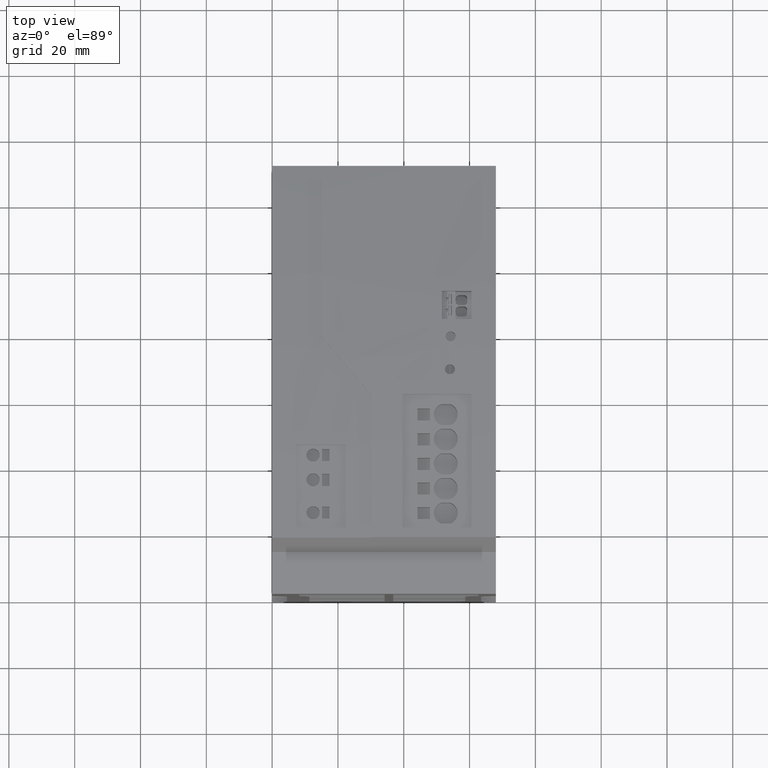
[diagram: clean part render]
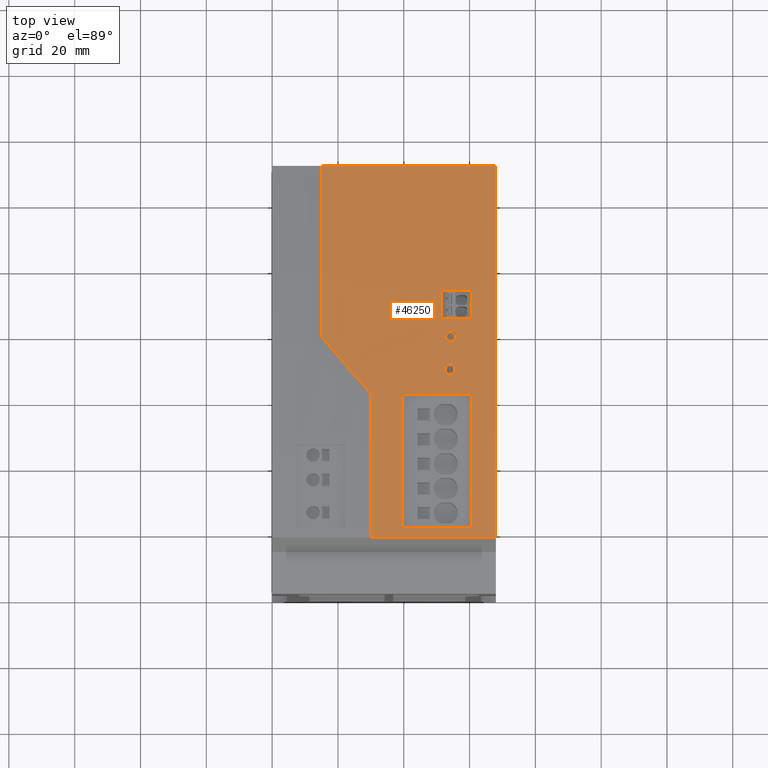
[diagram: same view with one face highlighted and labeled with its STEP entity id]
A machine part, top view. The second image highlights one B-rep face of the part: STEP entity #46250.
In plain terms, the highlighted cylindrical surface (partial cylindrical patch) has radius 660 mm, axis along (1, 0, 0).
Its self-contained STEP definition (entity closure, byte-faithful):
#36800=CARTESIAN_POINT('',(160.,16.9999999999954,-63.5));
#36810=VERTEX_POINT('',#36800);
#36840=CARTESIAN_POINT('',(-500.,17.,-63.5));
#36850=DIRECTION('',(0.,0.,-1.));
#36860=DIRECTION('',(-1.,0.,0.));
#36870=AXIS2_PLACEMENT_3D('',#36840,#36850,#36860);
#36880=CIRCLE('',#36870,660.);
#36890=CARTESIAN_POINT('',(150.254565535683,130.,-63.5));
#36900=VERTEX_POINT('',#36890);
#36910=EDGE_CURVE('',#36900,#36810,#36880,.T.);
#43640=CARTESIAN_POINT('',(-500.,17.,-63.5));
#43650=DIRECTION('',(0.,0.,-1.));
#43660=DIRECTION('',(-1.,0.,0.));
#43670=AXIS2_PLACEMENT_3D('',#43640,#43650,#43660);
#43680=CYLINDRICAL_SURFACE('',#43670,660.);
#43690=CARTESIAN_POINT('',(-500.,17.,-25.5));
#43700=DIRECTION('',(0.,0.,-1.));
#43710=DIRECTION('',(-1.,0.,0.));
#43720=AXIS2_PLACEMENT_3D('',#43690,#43700,#43710);
#43730=CIRCLE('',#43720,660.);
#43740=CARTESIAN_POINT('',(158.558506647845,60.5969416560468,-25.5));
#43750=VERTEX_POINT('',#43740);
#43760=CARTESIAN_POINT('',(160.,16.9999999999954,-25.5));
#43770=VERTEX_POINT('',#43760);
#43780=EDGE_CURVE('',#43750,#43770,#43730,.T.);
#43790=ORIENTED_EDGE('',*,*,#43780,.T.);
#43800=CARTESIAN_POINT('',(-500.,17.,-45.6454894932256));
#43810=DIRECTION('',(0.0200042102666528,-0.652297244206266,
0.757699238994285));
#43820=DIRECTION('',(-0.0232256881480475,0.757343187849847,
0.652603909908209));
#43830=AXIS2_PLACEMENT_3D('',#43800,#43810,#43820);
#43840=ELLIPSE('',#43830,871.058021486251,660.);
#43850=CARTESIAN_POINT('',(157.177022783229,77.9783627672197,-10.5));
#43860=VERTEX_POINT('',#43850);
#43870=EDGE_CURVE('',#43750,#43860,#43840,.T.);
#43880=ORIENTED_EDGE('',*,*,#43870,.F.);
#43890=CARTESIAN_POINT('',(-500.,17.,-10.5));
#43900=DIRECTION('',(0.,0.,-1.));
#43910=DIRECTION('',(-1.,0.,0.));
#43920=AXIS2_PLACEMENT_3D('',#43890,#43900,#43910);
#43930=CIRCLE('',#43920,660.);
#43940=CARTESIAN_POINT('',(150.254565535683,130.,-10.5));
#43950=VERTEX_POINT('',#43940);
#43960=EDGE_CURVE('',#43950,#43860,#43930,.T.);
#43970=ORIENTED_EDGE('',*,*,#43960,.T.);
#43980=CARTESIAN_POINT('',(150.254565535683,130.,-63.5));
#43990=DIRECTION('',(0.,0.,-1.));
#44000=VECTOR('',#43990,1.);
#44010=LINE('',#43980,#44000);
#44020=EDGE_CURVE('',#43950,#36900,#44010,.T.);
#44030=ORIENTED_EDGE('',*,*,#44020,.F.);
#44040=ORIENTED_EDGE('',*,*,#36910,.F.);
#44050=CARTESIAN_POINT('',(160.,16.9999999999951,-63.5));
#44060=DIRECTION('',(0.,0.,-1.));
#44070=VECTOR('',#44060,1.);
#44080=LINE('',#44050,#44070);
#44090=EDGE_CURVE('',#43770,#36810,#44080,.T.);
#44100=ORIENTED_EDGE('',*,*,#44090,.T.);
#44110=EDGE_LOOP('',(#44100,#44040,#44030,#43970,#43880,#43790));
#44120=FACE_OUTER_BOUND('',#44110,.T.);
#44130=CARTESIAN_POINT('',(156.657332089623,83.3411502232141,-63.5));
#44140=DIRECTION('',(0.,0.,-1.));
#44150=VECTOR('',#44140,1.);
#44160=LINE('',#44130,#44150);
#44170=CARTESIAN_POINT('',(156.657332089623,83.3411502232141,
-47.0535536205592));
#44180=VERTEX_POINT('',#44170);
#44190=CARTESIAN_POINT('',(156.657332089623,83.3411502232141,
-56.0464488452147));
#44200=VERTEX_POINT('',#44190);
#44210=EDGE_CURVE('',#44180,#44200,#44160,.T.);
#44220=ORIENTED_EDGE('',*,*,#44210,.F.);
#44230=CARTESIAN_POINT('',(-500.,17.,-56.0464488452147));
#44240=DIRECTION('',(0.,0.,-1.));
#44250=DIRECTION('',(-1.,0.,0.));
#44260=AXIS2_PLACEMENT_3D('',#44230,#44240,#44250);
#44270=CIRCLE('',#44260,660.);
#44280=CARTESIAN_POINT('',(155.731488730573,91.9414083613711,
-56.0464488452147));
#44290=VERTEX_POINT('',#44280);
#44300=EDGE_CURVE('',#44290,#44200,#44270,.T.);
#44310=ORIENTED_EDGE('',*,*,#44300,.T.);
#44320=CARTESIAN_POINT('',(155.731488730573,91.9414083613711,-63.5));
#44330=DIRECTION('',(0.,0.,-1.));
#44340=VECTOR('',#44330,1.);
#44350=LINE('',#44320,#44340);
#44360=CARTESIAN_POINT('',(155.731488730573,91.941408361371,
-47.0535509420847));
#44370=VERTEX_POINT('',#44360);
#44380=EDGE_CURVE('',#44370,#44290,#44350,.T.);
#44390=ORIENTED_EDGE('',*,*,#44380,.T.);
#44400=CARTESIAN_POINT('',(160.01810370412,54.8884984593609,
-47.053562497479));
#44410=CARTESIAN_POINT('',(159.591697785996,58.5748267309584,
-47.0535613477053));
#44420=CARTESIAN_POINT('',(159.165291867873,62.2611550025558,
-47.0535601979317));
#44430=CARTESIAN_POINT('',(158.075654924174,71.6811918749563,
-47.0535572598019));
#44440=CARTESIAN_POINT('',(157.412423898599,77.4149004757593,
-47.0535554714459));
#44450=CARTESIAN_POINT('',(156.410184654465,86.0793741697759,
-47.053552768978));
#44460=CARTESIAN_POINT('',(156.071146645719,89.0103968025886,
-47.0535518552891));
#44470=CARTESIAN_POINT('',(155.068870690566,97.6751878675992,
-47.0535491556976));
#44480=CARTESIAN_POINT('',(154.40563966499,103.408896468402,
-47.0535473693105));
#44490=CARTESIAN_POINT('',(153.316002721292,112.828933340803,
-47.0535444344156));
#44500=CARTESIAN_POINT('',(152.889596803168,116.5152616124,
-47.0535432859078));
#44510=CARTESIAN_POINT('',(152.463190885044,120.201589883998,
-47.0535421374));
#44520=B_SPLINE_CURVE_WITH_KNOTS('',3,(#44400,#44410,#44420,#44430,
#44440,#44450,#44460,#44470,#44480,#44490,#44500,#44510),.UNSPECIFIED.,
.F.,.F.,(4,2,2,2,2,4),(-3.21419034715991,-1.95638627404146,0.,1.,
2.95617444095114,4.21384232188334),.UNSPECIFIED.);
#44530=DIRECTION('',(-0.993376359232588,-0.114906087383605,0.));
#44540=VECTOR('',#44530,1.);
#44550=SURFACE_OF_LINEAR_EXTRUSION('',#44520,#44540);
#44560=CARTESIAN_POINT('',(155.731488730573,91.9414083613711,
-47.0535509420847));
#44570=CARTESIAN_POINT('',(155.813337578522,91.2252373140195,
-47.0535511651788));
#44580=CARTESIAN_POINT('',(155.894013370904,90.5089302547714,
-47.0535513883029));
#44590=CARTESIAN_POINT('',(155.973515448704,89.7924929499563,
-47.0535516114555));
#44600=CARTESIAN_POINT('',(156.053017526503,89.0760556451422,
-47.053551834608));
#44610=CARTESIAN_POINT('',(156.131345889711,88.3594880948506,
-47.0535520577889));
#44620=CARTESIAN_POINT('',(156.208499917112,87.6427960696197,
-47.0535522809963));
#44630=CARTESIAN_POINT('',(156.285653944513,86.9261040443856,
-47.0535525042037));
#44640=CARTESIAN_POINT('',(156.361634050245,86.2092836972283,
-47.0535527274388));
#44650=CARTESIAN_POINT('',(156.436439613102,85.4923407986188,
-47.0535529506999));
#44660=CARTESIAN_POINT('',(156.511245175958,84.7753979000151,
-47.053553173961));
#44670=CARTESIAN_POINT('',(156.58487619593,84.0583324500261,
-47.053553397248));
#44680=CARTESIAN_POINT('',(156.657332089623,83.3411502232141,
-47.0535536205592));
#44690=B_SPLINE_CURVE_WITH_KNOTS('',3,(#44560,#44570,#44580,#44590,
#44600,#44610,#44620,#44630,#44640,#44650,#44660,#44670,#44680),
.UNSPECIFIED.,.F.,.F.,(4,3,3,3,4),(0.,2.16250284654001,4.32500569308699,
6.48750853957087,8.65001138612923),.UNSPECIFIED.);
#44700=SURFACE_CURVE('',#44690,(#43680,#44550),.CURVE_3D.);
#44710=EDGE_CURVE('',#44370,#44180,#44700,.T.);
#44720=ORIENTED_EDGE('',*,*,#44710,.F.);
#44730=EDGE_LOOP('',(#44720,#44390,#44310,#44220));
#44740=FACE_BOUND('',#44730,.T.);
#44750=CARTESIAN_POINT('',(-500.,17.,-56.0464466091139));
#44760=DIRECTION('',(0.,0.,-1.));
#44770=DIRECTION('',(-1.,0.,0.));
#44780=AXIS2_PLACEMENT_3D('',#44750,#44760,#44770);
#44790=CIRCLE('',#44780,660.);
#44800=CARTESIAN_POINT('',(158.567457828247,60.461517341668,
-56.0464466091139));
#44810=VERTEX_POINT('',#44800);
#44820=CARTESIAN_POINT('',(159.993734905766,19.875740797911,
-56.0464466091139));
#44830=VERTEX_POINT('',#44820);
#44840=EDGE_CURVE('',#44810,#44830,#44790,.T.);
#44850=ORIENTED_EDGE('',*,*,#44840,.T.);
#44860=CARTESIAN_POINT('',(158.567457828247,60.461517341668,-63.5));
#44870=DIRECTION('',(0.,0.,-1.));
#44880=VECTOR('',#44870,1.);
#44890=LINE('',#44860,#44880);
#44900=CARTESIAN_POINT('',(158.567457828247,60.461517341668,
-35.1535533905902));
#44910=VERTEX_POINT('',#44900);
#44920=EDGE_CURVE('',#44910,#44810,#44890,.T.);
#44930=ORIENTED_EDGE('',*,*,#44920,.T.);
#44940=CARTESIAN_POINT('',(-500.,17.,-35.1535533902938));
#44950=DIRECTION('',(0.,0.,-1.));
#44960=DIRECTION('',(-1.,0.,0.));
#44970=AXIS2_PLACEMENT_3D('',#44940,#44950,#44960);
#44980=CIRCLE('',#44970,660.);
#44990=CARTESIAN_POINT('',(159.993734905766,19.875740797911,
-35.1535533902938));
#45000=VERTEX_POINT('',#44990);
#45010=EDGE_CURVE('',#44910,#45000,#44980,.T.);
#45020=ORIENTED_EDGE('',*,*,#45010,.F.);
#45030=CARTESIAN_POINT('',(159.993734905766,19.875740797911,-63.5));
#45040=DIRECTION('',(0.,0.,-1.));
#45050=VECTOR('',#45040,1.);
#45060=LINE('',#45030,#45050);
#45070=EDGE_CURVE('',#45000,#44830,#45060,.T.);
#45080=ORIENTED_EDGE('',*,*,#45070,.F.);
#45090=EDGE_LOOP('',(#45080,#45020,#44930,#44850));
#45100=FACE_BOUND('',#45090,.T.);
#45110=CARTESIAN_POINT('',(154.1,67.9999999999956,-49.52));
#45120=DIRECTION('',(1.,3.46944695195361E-17,3.65926689433575E-33));
#45130=DIRECTION('',(5.29630734706491E-34,9.0205620750794E-17,-1.));
#45140=AXIS2_PLACEMENT_3D('',#45110,#45120,#45130);
#45150=CYLINDRICAL_SURFACE('',#45140,1.5);
#45160=CARTESIAN_POINT('',(158.026595207215,67.9999999999956,-48.02));
#45170=CARTESIAN_POINT('',(158.00947664388,68.220871959729,-48.02));
#45180=CARTESIAN_POINT('',(157.99229434035,68.4410431624722,
-48.0692996739276));
#45190=CARTESIAN_POINT('',(157.976580486273,68.6412580364929,
-48.1639807779284));
#45200=CARTESIAN_POINT('',(157.960749880713,68.8429604757711,
-48.2593653477509));
#45210=CARTESIAN_POINT('',(157.946725516001,69.020441210032,
-48.3983517272193));
#45220=CARTESIAN_POINT('',(157.935570818822,69.1611412002409,
-48.5703942328035));
#45230=CARTESIAN_POINT('',(157.91823829227,69.3797653616057,
-48.8377194006774));
#45240=CARTESIAN_POINT('',(157.908635427238,69.4997850501883,
-49.1743436175712));
#45250=CARTESIAN_POINT('',(157.908618297812,69.4999997091781,
-49.5190659484652));
#45260=CARTESIAN_POINT('',(157.908601115169,69.5002150350691,
-49.8648592606177));
#45270=CARTESIAN_POINT('',(157.918199925433,69.3802464499086,
-50.2013033180626));
#45280=CARTESIAN_POINT('',(157.93551723397,69.1618170894041,
-50.4687787153801));
#45290=CARTESIAN_POINT('',(157.946606934156,69.0219387639347,
-50.6400652612668));
#45300=CARTESIAN_POINT('',(157.960753393839,68.8429103858391,
-50.7804113949247));
#45310=CARTESIAN_POINT('',(157.976473688488,68.6426187606951,
-50.8753749032637));
#45320=CARTESIAN_POINT('',(157.99217722469,68.4425406542338,
-50.9702371767997));
#45330=CARTESIAN_POINT('',(158.009495080623,68.220634079982,-51.02));
#45340=CARTESIAN_POINT('',(158.026595207215,67.9999999999956,-51.02));
#45350=B_SPLINE_CURVE_WITH_KNOTS('',3,(#45160,#45170,#45180,#45190,
#45200,#45210,#45220,#45230,#45240,#45250,#45260,#45270,#45280,#45290,
#45300,#45310,#45320,#45330,#45340),.UNSPECIFIED.,.F.,.F.,(4,3,3,3,3,3,4
),(0.,0.664483997847284,1.33108614840358,2.35888061091506,
3.38747370605843,4.05363595442655,4.71962930406148),.UNSPECIFIED.);
#45360=SURFACE_CURVE('',#45350,(#45150,#43680),.CURVE_3D.);
#45370=CARTESIAN_POINT('',(158.026595207215,67.9999999999956,-48.02));
#45380=VERTEX_POINT('',#45370);
#45390=CARTESIAN_POINT('',(158.026595207215,67.9999999999956,-51.02));
#45400=VERTEX_POINT('',#45390);
#45410=EDGE_CURVE('',#45380,#45400,#45360,.T.);
#45420=ORIENTED_EDGE('',*,*,#45410,.T.);
#45430=CARTESIAN_POINT('',(158.026595207215,67.9999999999956,-51.02));
#45440=CARTESIAN_POINT('',(158.043737983026,67.7788156392312,-51.02));
#45450=CARTESIAN_POINT('',(158.06073653319,67.5579695310989,
-50.9708291066006));
#45460=CARTESIAN_POINT('',(158.07623230099,67.3554612781367,
-50.8744629326875));
#45470=CARTESIAN_POINT('',(158.091611907816,67.154471088439,
-50.7788191488323));
#45480=CARTESIAN_POINT('',(158.105178338789,66.9759371760651,
-50.6387405156672));
#45490=CARTESIAN_POINT('',(158.115870792755,66.8347329750383,
-50.4645383848988));
#45500=CARTESIAN_POINT('',(158.132195857087,66.6191447038328,
-50.1985694127323));
#45510=CARTESIAN_POINT('',(158.141135182898,66.4999614158176,
-49.8635641569329));
#45520=CARTESIAN_POINT('',(158.141132280201,66.5000000094504,
-49.5198315828839));
#45530=CARTESIAN_POINT('',(158.141129378474,66.5000385901724,
-49.1762139984936));
#45540=CARTESIAN_POINT('',(158.132186226147,66.6192726727355,
-48.8411691517725));
#45550=CARTESIAN_POINT('',(158.115857162306,66.8349129779871,
-48.5752395906119));
#45560=CARTESIAN_POINT('',(158.105157795783,66.976207952717,
-48.4009933587662));
#45570=CARTESIAN_POINT('',(158.09160323659,67.1545855832813,
-48.2610731614988));
#45580=CARTESIAN_POINT('',(158.076209930618,67.3557536271048,
-48.1653979879621));
#45590=CARTESIAN_POINT('',(158.060710468493,67.5583089769208,
-48.0690630140961));
#45600=CARTESIAN_POINT('',(158.04372409375,67.7789948453624,-48.02));
#45610=CARTESIAN_POINT('',(158.026595207215,67.9999999999956,-48.02));
#45620=B_SPLINE_CURVE_WITH_KNOTS('',3,(#45430,#45440,#45450,#45460,
#45470,#45480,#45490,#45500,#45510,#45520,#45530,#45540,#45550,#45560,
#45570,#45580,#45590,#45600,#45610),.UNSPECIFIED.,.F.,.F.,(4,3,3,3,3,3,4
),(0.,0.66807742134742,1.33749569307599,2.35980608148462,
3.38206578766227,4.05152242704172,4.71927532994149),.UNSPECIFIED.);
#45630=SURFACE_CURVE('',#45620,(#45150,#43680),.CURVE_3D.);
#45640=EDGE_CURVE('',#45400,#45380,#45630,.T.);
#45650=ORIENTED_EDGE('',*,*,#45640,.T.);
#45660=EDGE_LOOP('',(#45650,#45420));
#45670=FACE_BOUND('',#45660,.T.);
#45680=CARTESIAN_POINT('',(155.948689465334,77.9759766660442,
-49.7299999999997));
#45690=DIRECTION('',(0.999450215941757,0.0331551783885286,
-4.49378157317781E-13));
#45700=DIRECTION('',(0.0331551783885286,-0.999450215941757,
-4.44917550544651E-28));
#45710=AXIS2_PLACEMENT_3D('',#45680,#45690,#45700);
#45720=CYLINDRICAL_SURFACE('',#45710,1.5);
#45730=CARTESIAN_POINT('',(157.310679899905,76.5203334124106,
-49.7300000000003));
#45740=CARTESIAN_POINT('',(157.310679899905,76.5203334124106,
-49.9511316698885));
#45750=CARTESIAN_POINT('',(157.306285642234,76.5689165283338,
-50.1691528340619));
#45760=CARTESIAN_POINT('',(157.297728191571,76.6631922897164,
-50.3696250642827));
#45770=CARTESIAN_POINT('',(157.28921790487,76.7569484549491,
-50.5689924018199));
#45780=CARTESIAN_POINT('',(157.276781369875,76.8937555191565,
-50.7458494052491));
#45790=CARTESIAN_POINT('',(157.261209416236,77.0641540080834,
-50.8868422707925));
#45800=CARTESIAN_POINT('',(157.2367009764,77.3323413666438,
-51.1087486059017));
#45810=CARTESIAN_POINT('',(157.205474530386,77.6719418090862,
-51.2301519490793));
#45820=CARTESIAN_POINT('',(157.173412017708,78.017264253684,
-51.2299998552427));
#45830=CARTESIAN_POINT('',(157.141321350826,78.362889927115,
-51.2298476278519));
#45840=CARTESIAN_POINT('',(157.109500394801,78.7023247437479,
-51.1079885022205));
#45850=CARTESIAN_POINT('',(157.084238157155,78.9701861013142,
-50.8858711686493));
#45860=CARTESIAN_POINT('',(157.068182097359,79.1404322225882,
-50.7446988291534));
#45870=CARTESIAN_POINT('',(157.055239876739,79.2769667668292,
-50.5678433665345));
#45880=CARTESIAN_POINT('',(157.046355210702,79.3705628027553,
-50.3682745105112));
#45890=CARTESIAN_POINT('',(157.03742210011,79.4646691806826,
-50.1676174847985));
#45900=CARTESIAN_POINT('',(157.032840873837,79.5127668021109,
-49.9493183291662));
#45910=CARTESIAN_POINT('',(157.032840873837,79.5127668021109,
-49.7300000000002));
#45920=B_SPLINE_CURVE_WITH_KNOTS('',3,(#45730,#45740,#45750,#45760,
#45770,#45780,#45790,#45800,#45810,#45820,#45830,#45840,#45850,#45860,
#45870,#45880,#45890,#45900,#45910),.UNSPECIFIED.,.F.,.F.,(4,3,3,3,3,3,4
),(0.,0.660858609418111,1.32163859158095,2.358872744223,3.39638697888355
,4.05718574375134,4.7165615604485),.UNSPECIFIED.);
#45930=SURFACE_CURVE('',#45920,(#43680,#45720),.CURVE_3D.);
#45940=CARTESIAN_POINT('',(157.310679899905,76.5203334124105,
-49.7300000000003));
#45950=VERTEX_POINT('',#45940);
#45960=CARTESIAN_POINT('',(157.032840873837,79.512766802111,
-49.7300000000002));
#45970=VERTEX_POINT('',#45960);
#45980=EDGE_CURVE('',#45950,#45970,#45930,.T.);
#45990=ORIENTED_EDGE('',*,*,#45980,.F.);
#46000=CARTESIAN_POINT('',(157.032840873837,79.5127668021109,
-49.7300000000002));
#46010=CARTESIAN_POINT('',(157.032840873837,79.5127668021109,
-49.5098390589492));
#46020=CARTESIAN_POINT('',(157.037541046194,79.4634167451979,
-49.2893852502481));
#46030=CARTESIAN_POINT('',(157.046393612281,79.3701582577363,
-49.0908636147361));
#46040=CARTESIAN_POINT('',(157.055307332605,79.2762555331621,
-48.8909705758407));
#46050=CARTESIAN_POINT('',(157.068385012731,79.1382821729009,
-48.713382629818));
#46060=CARTESIAN_POINT('',(157.084290075157,78.9696356002483,
-48.5736725639344));
#46070=CARTESIAN_POINT('',(157.109677361845,78.7004459061511,
-48.3506706415949));
#46080=CARTESIAN_POINT('',(157.141378707746,78.36227068224,
-48.2302126753999));
#46090=CARTESIAN_POINT('',(157.173387678325,78.0175263952389,
-48.2300002832375));
#46100=CARTESIAN_POINT('',(157.20547821819,77.6719035874789,
-48.2297873498307));
#46110=CARTESIAN_POINT('',(157.236704873756,77.3322987205704,
-48.3512865641894));
#46120=CARTESIAN_POINT('',(157.261209443436,77.0641537104487,
-48.5731579754801));
#46130=CARTESIAN_POINT('',(157.276783121663,76.8937363490921,
-48.7141665307221));
#46140=CARTESIAN_POINT('',(157.289214140686,76.7569899278686,
-48.8909175510222));
#46150=CARTESIAN_POINT('',(157.297728399581,76.6631899981162,
-49.0903798087024));
#46160=CARTESIAN_POINT('',(157.306283793621,76.5689368904921,
-49.2908057332176));
#46170=CARTESIAN_POINT('',(157.310679899905,76.5203334124106,
-49.5087777658178));
#46180=CARTESIAN_POINT('',(157.310679899905,76.5203334124106,
-49.7300000000003));
#46190=B_SPLINE_CURVE_WITH_KNOTS('',3,(#46000,#46010,#46020,#46030,
#46040,#46050,#46060,#46070,#46080,#46090,#46100,#46110,#46120,#46130,
#46140,#46150,#46160,#46170,#46180),.UNSPECIFIED.,.F.,.F.,(4,3,3,3,3,3,4
),(0.,0.660328683306185,1.32089146661013,2.35742553214093,
3.39492334446353,4.05570832829397,4.71656154878348),.UNSPECIFIED.);
#46200=SURFACE_CURVE('',#46190,(#43680,#45720),.CURVE_3D.);
#46210=EDGE_CURVE('',#45970,#45950,#46200,.T.);
#46220=ORIENTED_EDGE('',*,*,#46210,.F.);
#46230=EDGE_LOOP('',(#46220,#45990));
#46240=FACE_BOUND('',#46230,.T.);
#46250=ADVANCED_FACE('',(#44120,#44740,#45100,#45670,#46240),#43680,.T.)
;